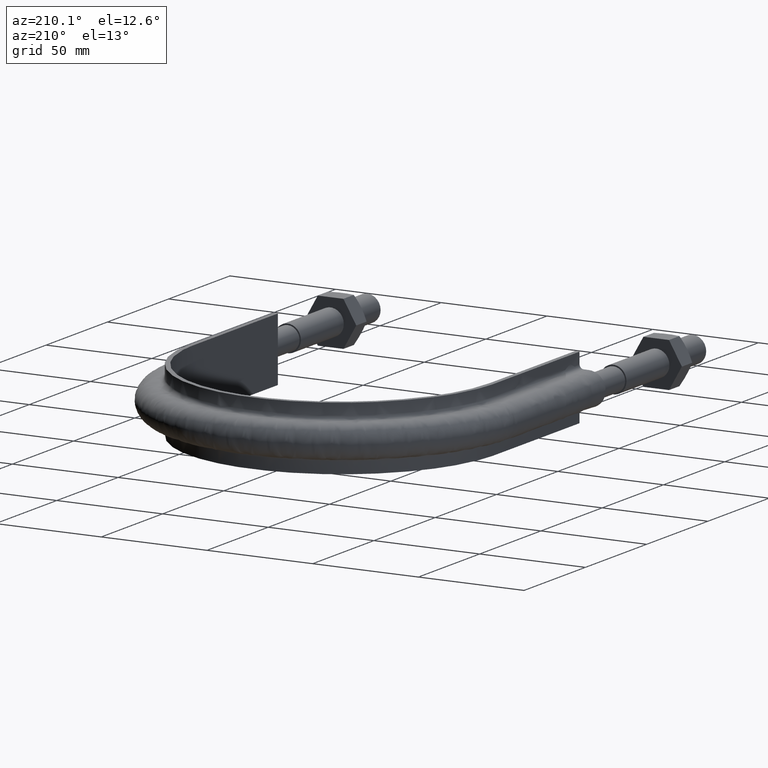
[diagram: clean part render]
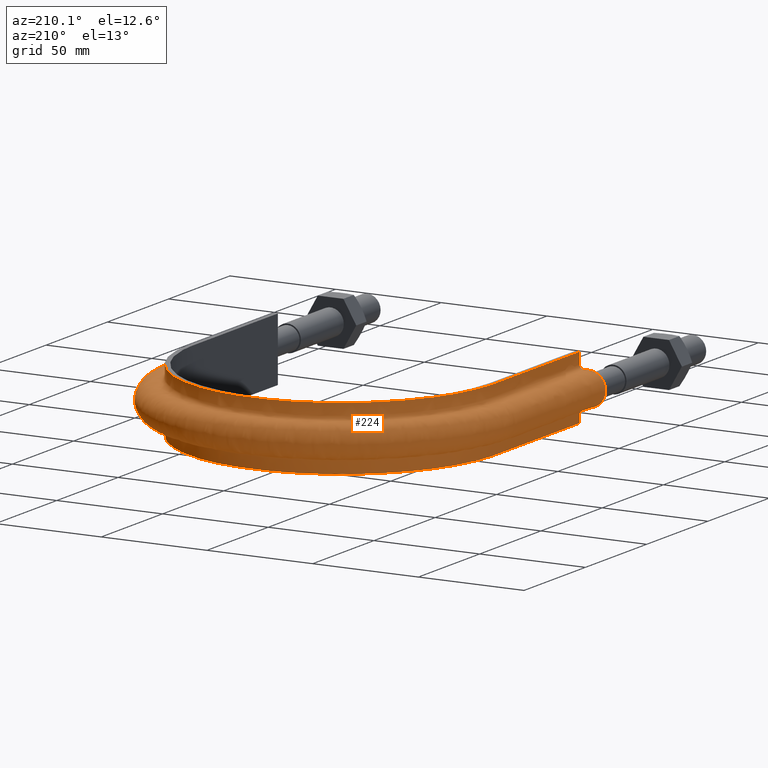
[diagram: same view with one face highlighted and labeled with its STEP entity id]
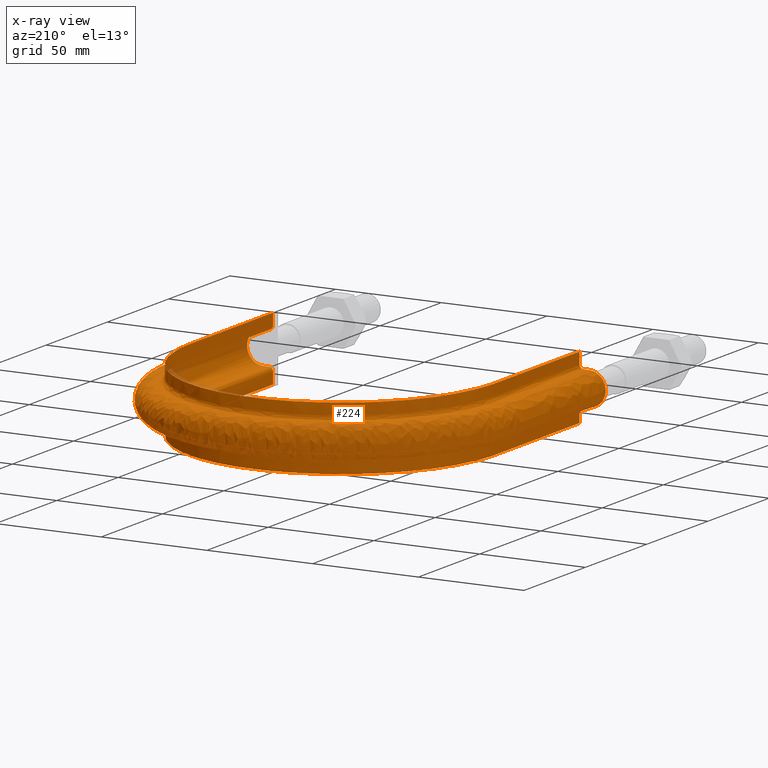
[diagram: x-ray of the same camera — body ghosted, the highlighted face saturated]
A machine part, auxiliary view. The second image highlights one B-rep face of the part: STEP entity #224.
The next image is the same camera in x-ray: the body ghosted, the highlighted face saturated — about 1% of this face is hidden behind the body in this view.
In plain terms, the highlighted face is a freeform B-spline surface patch.
Its self-contained STEP definition (entity closure, byte-faithful):
#224 = ADVANCED_FACE( '', ( #272 ), #273, .F. );
#272 = FACE_OUTER_BOUND( '', #375, .T. );
#273 = B_SPLINE_SURFACE_WITH_KNOTS( '', 3, 3, ( ( #376, #377, #378, #379, #380, #381, #382, #383, #384, #385, #386, #387, #388, #389, #390, #391 ), ( #392, #393, #394, #395, #396, #397, #398, #399, #400, #401, #402, #403, #404, #405, #406, #407 ), ( #408, #409, #410, #411, #412, #413, #414, #415, #416, #417, #418, #419, #420, #421, #422, #423 ), ( #424, #425, #426, #427, #428, #429, #430, #431, #432, #433, #434, #435, #436, #437, #438, #439 ), ( #440, #441, #442, #443, #444, #445, #446, #447, #448, #449, #450, #451, #452, #453, #454, #455 ), ( #456, #457, #458, #459, #460, #461, #462, #463, #464, #465, #466, #467, #468, #469, #470, #471 ), ( #472, #473, #474, #475, #476, #477, #478, #479, #480, #481, #482, #483, #484, #485, #486, #487 ), ( #488, #489, #490, #491, #492, #493, #494, #495, #496, #497, #498, #499, #500, #501, #502, #503 ), ( #504, #505, #506, #507, #508, #509, #510, #511, #512, #513, #514, #515, #516, #517, #518, #519 ), ( #520, #521, #522, #523, #524, #525, #526, #527, #528, #529, #530, #531, #532, #533, #534, #535 ), ( #536, #537, #538, #539, #540, #541, #542, #543, #544, #545, #546, #547, #548, #549, #550, #551 ), ( #552, #553, #554, #555, #556, #557, #558, #559, #560, #561, #562, #563, #564, #565, #566, #567 ), ( #568, #569, #570, #571, #572, #573, #574, #575, #576, #577, #578, #579, #580, #581, #582, #583 ), ( #584, #585, #586, #587, #588, #589, #590, #591, #592, #593, #594, #595, #596, #597, #598, #599 ), ( #600, #601, #602, #603, #604, #605, #606, #607, #608, #609, #610, #611, #612, #613, #614, #615 ), ( #616, #617, #618, #619, #620, #621, #622, #623, #624, #625, #626, #627, #628, #629, #630, #631 ), ( #632, #633, #634, #635, #636, #637, #638, #639, #640, #641, #642, #643, #644, #645, #646, #647 ), ( #648, #649, #650, #651, #652, #653, #654, #655, #656, #657, #658, #659, #660, #661, #662, #663 ), ( #664, #665, #666, #667, #668, #669, #670, #671, #672, #673, #674, #675, #676, #677, #678, #679 ), ( #680, #681, #682, #683, #684, #685, #686, #687, #688, #689, #690, #691, #692, #693, #694, #695 ), ( #696, #697, #698, #699, #700, #701, #702, #703, #704, #705, #706, #707, #708, #709, #710, #711 ), ( #712, #713, #714, #715, #716, #717, #718, #719, #720, #721, #722, #723, #724, #725, #726, #727 ), ( #728, #729, #730, #731, #732, #733, #734, #735, #736, #737, #738, #739, #740, #741, #742, #743 ), ( #744, #745, #746, #747, #748, #749, #750, #751, #752, #753, #754, #755, #756, #757, #758, #759 ), ( #760, #761, #762, #763, #764, #765, #766, #767, #768, #769, #770, #771, #772, #773, #774, #775 ), ( #776, #777, #778, #779, #780, #781, #782, #783, #784, #785, #786, #787, #788, #789, #790, #791 ), ( #792, #793, #794, #795, #796, #797, #798, #799, #800, #801, #802, #803, #804, #805, #806, #807 ), ( #808, #809, #810, #811, #812, #813, #814, #815, #816, #817, #818, #819, #820, #821, #822, #823 ), ( #824, #825, #826, #827, #828, #829, #830, #831, #832, #833, #834, #835, #836, #837, #838, #839 ), ( #840, #841, #842, #843, #844, #845, #846, #847, #848, #849, #850, #851, #852, #853, #854, #855 ), ( #856, #857, #858, #859, #860, #861, #862, #863, #864, #865, #866, #867, #868, #869, #870, #871 ) ), .UNSPECIFIED., .F., .F., .F., ( 4, 3, 1, 1, 1, 3, 3, 1, 1, 1, 3, 3, 1, 1, 1, 3, 4 ), ( 4, 3, 1, 1, 1, 1, 1, 1, 3, 4 ), ( 0.105263157894737, 0.157894736842105, 0.210526315789474, 0.263157894736842, 0.315789473684211, 0.368421052631579, 0.421052631578947, 0.473684210526316, 0.526315789473684, 0.578947368421053, 0.631578947368421, 0.684210526315789, 0.736842105263158, 0.789473684210526, 0.842105263157895, 0.894736842105263, 0.947368421052632 ), ( 0.000000000000000, 1.00000000000000, 2.00000000000000, 3.00000000000000, 4.00000000000000, 5.00000000000000, 6.00000000000000, 7.00000000000000, 8.00000000000000, 9.00000000000000 ), .UNSPECIFIED. );
#375 = EDGE_LOOP( '', ( #1361, #1362, #1363, #1364 ) );
#376 = CARTESIAN_POINT( '', ( 72.4500000000000, 84.7100000000000, -15.0000000000000 ) );
#377 = CARTESIAN_POINT( '', ( 72.4500000000000, 107.726666666667, -15.0000000000000 ) );
#378 = CARTESIAN_POINT( '', ( 72.4500000000000, 130.743333333333, -15.0000000000000 ) );
#379 = CARTESIAN_POINT( '', ( 72.4500000000000, 153.760000000000, -15.0000000000000 ) );
#380 = CARTESIAN_POINT( '', ( 72.4500000000000, 164.584175230504, -15.0000000000000 ) );
#381 = CARTESIAN_POINT( '', ( 67.5035108460798, 186.273453800089, -15.0000000000000 ) );
#382 = CARTESIAN_POINT( '', ( 46.7138789159023, 212.335910248336, -15.0000000000000 ) );
#383 = CARTESIAN_POINT( '', ( 16.6719903583027, 226.805050635421, -15.0000000000000 ) );
#384 = CARTESIAN_POINT( '', ( -16.6719903583025, 226.805050635421, -15.0000000000000 ) );
#385 = CARTESIAN_POINT( '', ( -46.7138789159022, 212.335910248336, -15.0000000000000 ) );
#386 = CARTESIAN_POINT( '', ( -67.5035108460798, 186.273453800089, -15.0000000000000 ) );
#387 = CARTESIAN_POINT( '', ( -72.4500000000000, 164.584175230504, -15.0000000000000 ) );
#388 = CARTESIAN_POINT( '', ( -72.4500000000000, 153.760000000000, -15.0000000000000 ) );
#389 = CARTESIAN_POINT( '', ( -72.4500000000000, 130.743333333333, -15.0000000000000 ) );
#390 = CARTESIAN_POINT( '', ( -72.4500000000000, 107.726666666667, -15.0000000000000 ) );
#391 = CARTESIAN_POINT( '', ( -72.4500000000000, 84.7100000000000, -15.0000000000000 ) );
#392 = CARTESIAN_POINT( '', ( 72.4500000000000, 84.7100000000000, -13.2666666666667 ) );
#393 = CARTESIAN_POINT( '', ( 72.4500000000000, 107.726666666667, -13.2666666666667 ) );
#394 = CARTESIAN_POINT( '', ( 72.4500000000000, 130.743333333333, -13.2666666666667 ) );
#395 = CARTESIAN_POINT( '', ( 72.4500000000000, 153.760000000000, -13.2666666666667 ) );
#396 = CARTESIAN_POINT( '', ( 72.4500000000000, 164.584175230504, -13.2666666666667 ) );
#397 = CARTESIAN_POINT( '', ( 67.5035108460798, 186.273453800089, -13.2666666666667 ) );
#398 = CARTESIAN_POINT( '', ( 46.7138789159023, 212.335910248336, -13.2666666666667 ) );
#399 = CARTESIAN_POINT( '', ( 16.6719903583027, 226.805050635421, -13.2666666666667 ) );
#400 = CARTESIAN_POINT( '', ( -16.6719903583025, 226.805050635421, -13.2666666666667 ) );
#401 = CARTESIAN_POINT( '', ( -46.7138789159022, 212.335910248336, -13.2666666666667 ) );
#402 = CARTESIAN_POINT( '', ( -67.5035108460798, 186.273453800089, -13.2666666666667 ) );
#403 = CARTESIAN_POINT( '', ( -72.4500000000000, 164.584175230504, -13.2666666666667 ) );
#404 = CARTESIAN_POINT( '', ( -72.4500000000000, 153.760000000000, -13.2666666666667 ) );
#405 = CARTESIAN_POINT( '', ( -72.4500000000000, 130.743333333333, -13.2666666666667 ) );
#406 = CARTESIAN_POINT( '', ( -72.4500000000000, 107.726666666667, -13.2666666666667 ) );
#407 = CARTESIAN_POINT( '', ( -72.4500000000000, 84.7100000000000, -13.2666666666667 ) );
#408 = CARTESIAN_POINT( '', ( 72.4500000000000, 84.7100000000000, -11.5333333333333 ) );
#409 = CARTESIAN_POINT( '', ( 72.4500000000000, 107.726666666667, -11.5333333333333 ) );
#410 = CARTESIAN_POINT( '', ( 72.4500000000000, 130.743333333333, -11.5333333333333 ) );
#411 = CARTESIAN_POINT( '', ( 72.4500000000000, 153.760000000000, -11.5333333333333 ) );
#412 = CARTESIAN_POINT( '', ( 72.4500000000000, 164.584175230504, -11.5333333333333 ) );
#413 = CARTESIAN_POINT( '', ( 67.5035108460798, 186.273453800089, -11.5333333333333 ) );
#414 = CARTESIAN_POINT( '', ( 46.7138789159023, 212.335910248336, -11.5333333333333 ) );
#415 = CARTESIAN_POINT( '', ( 16.6719903583027, 226.805050635421, -11.5333333333333 ) );
#416 = CARTESIAN_POINT( '', ( -16.6719903583025, 226.805050635421, -11.5333333333333 ) );
#417 = CARTESIAN_POINT( '', ( -46.7138789159022, 212.335910248336, -11.5333333333333 ) );
#418 = CARTESIAN_POINT( '', ( -67.5035108460798, 186.273453800089, -11.5333333333333 ) );
#419 = CARTESIAN_POINT( '', ( -72.4500000000000, 164.584175230504, -11.5333333333333 ) );
#420 = CARTESIAN_POINT( '', ( -72.4500000000000, 153.760000000000, -11.5333333333333 ) );
#421 = CARTESIAN_POINT( '', ( -72.4500000000000, 130.743333333333, -11.5333333333333 ) );
#422 = CARTESIAN_POINT( '', ( -72.4500000000000, 107.726666666667, -11.5333333333333 ) );
#423 = CARTESIAN_POINT( '', ( -72.4500000000000, 84.7100000000000, -11.5333333333333 ) );
#424 = CARTESIAN_POINT( '', ( 72.4500000000000, 84.7100000000000, -9.79999999999999 ) );
#425 = CARTESIAN_POINT( '', ( 72.4500000000000, 107.726666666667, -9.79999999999999 ) );
#426 = CARTESIAN_POINT( '', ( 72.4500000000000, 130.743333333333, -9.79999999999999 ) );
#427 = CARTESIAN_POINT( '', ( 72.4500000000000, 153.760000000000, -9.79999999999999 ) );
#428 = CARTESIAN_POINT( '', ( 72.4500000000000, 164.584175230504, -9.79999999999999 ) );
#429 = CARTESIAN_POINT( '', ( 67.5035108460798, 186.273453800089, -9.80000000000000 ) );
#430 = CARTESIAN_POINT( '', ( 46.7138789159023, 212.335910248336, -9.79999999999998 ) );
#431 = CARTESIAN_POINT( '', ( 16.6719903583027, 226.805050635421, -9.80000000000000 ) );
#432 = CARTESIAN_POINT( '', ( -16.6719903583025, 226.805050635421, -9.79999999999999 ) );
#433 = CARTESIAN_POINT( '', ( -46.7138789159022, 212.335910248336, -9.79999999999999 ) );
#434 = CARTESIAN_POINT( '', ( -67.5035108460798, 186.273453800089, -9.79999999999999 ) );
#435 = CARTESIAN_POINT( '', ( -72.4500000000000, 164.584175230504, -9.79999999999999 ) );
#436 = CARTESIAN_POINT( '', ( -72.4500000000000, 153.760000000000, -9.79999999999999 ) );
#437 = CARTESIAN_POINT( '', ( -72.4500000000000, 130.743333333333, -9.79999999999999 ) );
#438 = CARTESIAN_POINT( '', ( -72.4500000000000, 107.726666666667, -9.79999999999999 ) );
#439 = CARTESIAN_POINT( '', ( -72.4500000000000, 84.7100000000000, -9.79999999999999 ) );
#440 = CARTESIAN_POINT( '', ( 72.4500000000000, 84.7100000000000, -9.53823584172332 ) );
#441 = CARTESIAN_POINT( '', ( 72.4500000000000, 107.726666666667, -9.53823584172332 ) );
#442 = CARTESIAN_POINT( '', ( 72.4500000000000, 130.743333333333, -9.53823584172332 ) );
#443 = CARTESIAN_POINT( '', ( 72.4500000000000, 153.760000000000, -9.53823584172332 ) );
#444 = CARTESIAN_POINT( '', ( 72.4500000000000, 164.584175230504, -9.53823584172332 ) );
#445 = CARTESIAN_POINT( '', ( 67.5035108460798, 186.273453800089, -9.53823584172334 ) );
#446 = CARTESIAN_POINT( '', ( 46.7138789159023, 212.335910248336, -9.53823584172331 ) );
#447 = CARTESIAN_POINT( '', ( 16.6719903583027, 226.805050635421, -9.53823584172333 ) );
#448 = CARTESIAN_POINT( '', ( -16.6719903583025, 226.805050635421, -9.53823584172332 ) );
#449 = CARTESIAN_POINT( '', ( -46.7138789159022, 212.335910248336, -9.53823584172333 ) );
#450 = CARTESIAN_POINT( '', ( -67.5035108460798, 186.273453800089, -9.53823584172333 ) );
#451 = CARTESIAN_POINT( '', ( -72.4500000000000, 164.584175230504, -9.53823584172332 ) );
#452 = CARTESIAN_POINT( '', ( -72.4500000000000, 153.760000000000, -9.53823584172332 ) );
#453 = CARTESIAN_POINT( '', ( -72.4500000000000, 130.743333333333, -9.53823584172332 ) );
#454 = CARTESIAN_POINT( '', ( -72.4500000000000, 107.726666666667, -9.53823584172332 ) );
#455 = CARTESIAN_POINT( '', ( -72.4500000000000, 84.7100000000000, -9.53823584172332 ) );
#456 = CARTESIAN_POINT( '', ( 72.5541362568359, 84.7100000000000, -9.01470752517000 ) );
#457 = CARTESIAN_POINT( '', ( 72.5541362568359, 107.726666666667, -9.01470752517000 ) );
#458 = CARTESIAN_POINT( '', ( 72.5541362568359, 130.743333333333, -9.01470752517000 ) );
#459 = CARTESIAN_POINT( '', ( 72.5541362568359, 153.760000000000, -9.01470752517000 ) );
#460 = CARTESIAN_POINT( '', ( 72.5541362568359, 164.600020844551, -9.01470752517000 ) );
#461 = CARTESIAN_POINT( '', ( 67.6005372497071, 186.320053916949, -9.01470752517001 ) );
#462 = CARTESIAN_POINT( '', ( 46.7810232705274, 212.420139589218, -9.01470752516999 ) );
#463 = CARTESIAN_POINT( '', ( 16.6959539010206, 226.910035179395, -9.01470752517000 ) );
#464 = CARTESIAN_POINT( '', ( -16.6959539010205, 226.910035179395, -9.01470752517000 ) );
#465 = CARTESIAN_POINT( '', ( -46.7810232705273, 212.420139589218, -9.01470752517000 ) );
#466 = CARTESIAN_POINT( '', ( -67.6005372497070, 186.320053916949, -9.01470752517000 ) );
#467 = CARTESIAN_POINT( '', ( -72.5541362568359, 164.600020844551, -9.01470752517000 ) );
#468 = CARTESIAN_POINT( '', ( -72.5541362568359, 153.760000000000, -9.01470752517000 ) );
#469 = CARTESIAN_POINT( '', ( -72.5541362568359, 130.743333333333, -9.01470752517000 ) );
#470 = CARTESIAN_POINT( '', ( -72.5541362568359, 107.726666666667, -9.01470752517000 ) );
#471 = CARTESIAN_POINT( '', ( -72.5541362568359, 84.7100000000000, -9.01470752517000 ) );
#472 = CARTESIAN_POINT( '', ( 72.9989687109389, 84.7100000000000, -8.34896871093886 ) );
#473 = CARTESIAN_POINT( '', ( 72.9989687109389, 107.726666666667, -8.34896871093886 ) );
#474 = CARTESIAN_POINT( '', ( 72.9989687109389, 130.743333333333, -8.34896871093886 ) );
#475 = CARTESIAN_POINT( '', ( 72.9989687109389, 153.760000000000, -8.34896871093886 ) );
#476 = CARTESIAN_POINT( '', ( 72.9989687109389, 164.667707581115, -8.34896871093886 ) );
#477 = CARTESIAN_POINT( '', ( 68.0149989804211, 186.519112774777, -8.34896871093888 ) );
#478 = CARTESIAN_POINT( '', ( 47.0678396873504, 212.779936892776, -8.34896871093885 ) );
#479 = CARTESIAN_POINT( '', ( 16.7983174950284, 227.358491209583, -8.34896871093887 ) );
#480 = CARTESIAN_POINT( '', ( -16.7983174950283, 227.358491209583, -8.34896871093886 ) );
#481 = CARTESIAN_POINT( '', ( -47.0678396873504, 212.779936892776, -8.34896871093886 ) );
#482 = CARTESIAN_POINT( '', ( -68.0149989804210, 186.519112774777, -8.34896871093886 ) );
#483 = CARTESIAN_POINT( '', ( -72.9989687109389, 164.667707581115, -8.34896871093886 ) );
#484 = CARTESIAN_POINT( '', ( -72.9989687109388, 153.760000000000, -8.34896871093886 ) );
#485 = CARTESIAN_POINT( '', ( -72.9989687109388, 130.743333333333, -8.34896871093886 ) );
#486 = CARTESIAN_POINT( '', ( -72.9989687109388, 107.726666666667, -8.34896871093886 ) );
#487 = CARTESIAN_POINT( '', ( -72.9989687109389, 84.7100000000000, -8.34896871093886 ) );
#488 = CARTESIAN_POINT( '', ( 73.6647075251700, 84.7100000000000, -7.90413625683590 ) );
#489 = CARTESIAN_POINT( '', ( 73.6647075251700, 107.726666666667, -7.90413625683590 ) );
#490 = CARTESIAN_POINT( '', ( 73.6647075251700, 130.743333333333, -7.90413625683590 ) );
#491 = CARTESIAN_POINT( '', ( 73.6647075251700, 153.760000000000, -7.90413625683590 ) );
#492 = CARTESIAN_POINT( '', ( 73.6647075251700, 164.769007941112, -7.90413625683590 ) );
#493 = CARTESIAN_POINT( '', ( 68.6352847950119, 186.817025408512, -7.90413625683591 ) );
#494 = CARTESIAN_POINT( '', ( 47.4970907895949, 213.318411610672, -7.90413625683589 ) );
#495 = CARTESIAN_POINT( '', ( 16.9515154397077, 228.029653088664, -7.90413625683590 ) );
#496 = CARTESIAN_POINT( '', ( -16.9515154397075, 228.029653088664, -7.90413625683589 ) );
#497 = CARTESIAN_POINT( '', ( -47.4970907895948, 213.318411610672, -7.90413625683590 ) );
#498 = CARTESIAN_POINT( '', ( -68.6352847950119, 186.817025408512, -7.90413625683590 ) );
#499 = CARTESIAN_POINT( '', ( -73.6647075251700, 164.769007941112, -7.90413625683590 ) );
#500 = CARTESIAN_POINT( '', ( -73.6647075251700, 153.760000000000, -7.90413625683590 ) );
#501 = CARTESIAN_POINT( '', ( -73.6647075251700, 130.743333333333, -7.90413625683590 ) );
#502 = CARTESIAN_POINT( '', ( -73.6647075251700, 107.726666666667, -7.90413625683590 ) );
#503 = CARTESIAN_POINT( '', ( -73.6647075251700, 84.7100000000000, -7.90413625683590 ) );
#504 = CARTESIAN_POINT( '', ( 74.1882358417234, 84.7100000000000, -7.79999999999999 ) );
#505 = CARTESIAN_POINT( '', ( 74.1882358417233, 107.726666666667, -7.79999999999999 ) );
#506 = CARTESIAN_POINT( '', ( 74.1882358417233, 130.743333333333, -7.79999999999999 ) );
#507 = CARTESIAN_POINT( '', ( 74.1882358417234, 153.760000000000, -7.79999999999999 ) );
#508 = CARTESIAN_POINT( '', ( 74.1882358417234, 164.848669222387, -7.79999999999999 ) );
#509 = CARTESIAN_POINT( '', ( 69.1230694657461, 187.051300016339, -7.80000000000000 ) );
#510 = CARTESIAN_POINT( '', ( 47.8346482552749, 213.741861102486, -7.79999999999998 ) );
#511 = CARTESIAN_POINT( '', ( 17.0719883043850, 228.557446032652, -7.80000000000000 ) );
#512 = CARTESIAN_POINT( '', ( -17.0719883043849, 228.557446032652, -7.79999999999998 ) );
#513 = CARTESIAN_POINT( '', ( -47.8346482552749, 213.741861102486, -7.79999999999999 ) );
#514 = CARTESIAN_POINT( '', ( -69.1230694657460, 187.051300016339, -7.79999999999999 ) );
#515 = CARTESIAN_POINT( '', ( -74.1882358417233, 164.848669222387, -7.79999999999999 ) );
#516 = CARTESIAN_POINT( '', ( -74.1882358417233, 153.760000000000, -7.79999999999999 ) );
#517 = CARTESIAN_POINT( '', ( -74.1882358417233, 130.743333333333, -7.79999999999999 ) );
#518 = CARTESIAN_POINT( '', ( -74.1882358417233, 107.726666666667, -7.79999999999999 ) );
#519 = CARTESIAN_POINT( '', ( -74.1882358417233, 84.7100000000000, -7.79999999999999 ) );
#520 = CARTESIAN_POINT( '', ( 74.4500000000000, 84.7100000000000, -7.79999999999999 ) );
#521 = CARTESIAN_POINT( '', ( 74.4500000000000, 107.726666666667, -7.79999999999999 ) );
#522 = CARTESIAN_POINT( '', ( 74.4500000000000, 130.743333333333, -7.79999999999999 ) );
#523 = CARTESIAN_POINT( '', ( 74.4500000000000, 153.760000000000, -7.79999999999999 ) );
#524 = CARTESIAN_POINT( '', ( 74.4500000000000, 164.888499863024, -7.79999999999999 ) );
#525 = CARTESIAN_POINT( '', ( 69.3669618011131, 187.168437320253, -7.80000000000000 ) );
#526 = CARTESIAN_POINT( '', ( 48.0034269881149, 213.953585848393, -7.79999999999998 ) );
#527 = CARTESIAN_POINT( '', ( 17.1322247367237, 228.821342504646, -7.80000000000000 ) );
#528 = CARTESIAN_POINT( '', ( -17.1322247367236, 228.821342504646, -7.79999999999998 ) );
#529 = CARTESIAN_POINT( '', ( -48.0034269881148, 213.953585848393, -7.79999999999999 ) );
#530 = CARTESIAN_POINT( '', ( -69.3669618011131, 187.168437320253, -7.79999999999999 ) );
#531 = CARTESIAN_POINT( '', ( -74.4500000000000, 164.888499863024, -7.79999999999999 ) );
#532 = CARTESIAN_POINT( '', ( -74.4500000000000, 153.760000000000, -7.79999999999999 ) );
#533 = CARTESIAN_POINT( '', ( -74.4500000000000, 130.743333333333, -7.79999999999999 ) );
#534 = CARTESIAN_POINT( '', ( -74.4500000000000, 107.726666666667, -7.79999999999999 ) );
#535 = CARTESIAN_POINT( '', ( -74.4500000000000, 84.7100000000000, -7.79999999999999 ) );
#536 = CARTESIAN_POINT( '', ( 75.3000000000000, 84.7100000000000, -7.79999999999999 ) );
#537 = CARTESIAN_POINT( '', ( 75.3000000000000, 107.726666666667, -7.79999999999999 ) );
#538 = CARTESIAN_POINT( '', ( 75.3000000000000, 130.743333333333, -7.79999999999999 ) );
#539 = CARTESIAN_POINT( '', ( 75.3000000000000, 153.760000000000, -7.79999999999999 ) );
#540 = CARTESIAN_POINT( '', ( 75.3000000000000, 165.017837831845, -7.79999999999999 ) );
#541 = CARTESIAN_POINT( '', ( 70.1589284570022, 187.548805316322, -7.80000000000000 ) );
#542 = CARTESIAN_POINT( '', ( 48.5514849188053, 214.641097978417, -7.79999999999998 ) );
#543 = CARTESIAN_POINT( '', ( 17.3278243475527, 229.678266549066, -7.80000000000000 ) );
#544 = CARTESIAN_POINT( '', ( -17.3278243475525, 229.678266549066, -7.79999999999999 ) );
#545 = CARTESIAN_POINT( '', ( -48.5514849188052, 214.641097978417, -7.79999999999999 ) );
#546 = CARTESIAN_POINT( '', ( -70.1589284570022, 187.548805316322, -7.79999999999999 ) );
#547 = CARTESIAN_POINT( '', ( -75.3000000000000, 165.017837831845, -7.79999999999999 ) );
#548 = CARTESIAN_POINT( '', ( -75.3000000000000, 153.760000000000, -7.79999999999999 ) );
#549 = CARTESIAN_POINT( '', ( -75.3000000000000, 130.743333333333, -7.79999999999999 ) );
#550 = CARTESIAN_POINT( '', ( -75.3000000000000, 107.726666666667, -7.79999999999999 ) );
#551 = CARTESIAN_POINT( '', ( -75.3000000000000, 84.7100000000000, -7.79999999999999 ) );
#552 = CARTESIAN_POINT( '', ( 76.1500000000000, 84.7100000000000, -7.79999999999999 ) );
#553 = CARTESIAN_POINT( '', ( 76.1500000000000, 107.726666666667, -7.79999999999999 ) );
#554 = CARTESIAN_POINT( '', ( 76.1500000000000, 130.743333333333, -7.79999999999999 ) );
#555 = CARTESIAN_POINT( '', ( 76.1500000000000, 153.760000000000, -7.79999999999999 ) );
#556 = CARTESIAN_POINT( '', ( 76.1500000000000, 165.147175800666, -7.79999999999999 ) );
#557 = CARTESIAN_POINT( '', ( 70.9508951128914, 187.929173312392, -7.80000000000000 ) );
#558 = CARTESIAN_POINT( '', ( 49.0995428494957, 215.328610108441, -7.79999999999998 ) );
#559 = CARTESIAN_POINT( '', ( 17.5234239583816, 230.535190593487, -7.80000000000000 ) );
#560 = CARTESIAN_POINT( '', ( -17.5234239583815, 230.535190593487, -7.79999999999999 ) );
#561 = CARTESIAN_POINT( '', ( -49.0995428494956, 215.328610108441, -7.79999999999999 ) );
#562 = CARTESIAN_POINT( '', ( -70.9508951128913, 187.929173312392, -7.79999999999999 ) );
#563 = CARTESIAN_POINT( '', ( -76.1500000000000, 165.147175800666, -7.79999999999999 ) );
#564 = CARTESIAN_POINT( '', ( -76.1500000000000, 153.760000000000, -7.79999999999999 ) );
#565 = CARTESIAN_POINT( '', ( -76.1500000000000, 130.743333333333, -7.79999999999999 ) );
#566 = CARTESIAN_POINT( '', ( -76.1500000000000, 107.726666666667, -7.79999999999999 ) );
#567 = CARTESIAN_POINT( '', ( -76.1500000000000, 84.7100000000000, -7.79999999999999 ) );
#568 = CARTESIAN_POINT( '', ( 77.0000000000000, 84.7100000000000, -7.79999999999999 ) );
#569 = CARTESIAN_POINT( '', ( 77.0000000000000, 107.726666666667, -7.79999999999999 ) );
#570 = CARTESIAN_POINT( '', ( 77.0000000000000, 130.743333333333, -7.79999999999999 ) );
#571 = CARTESIAN_POINT( '', ( 77.0000000000000, 153.760000000000, -7.79999999999999 ) );
#572 = CARTESIAN_POINT( '', ( 77.0000000000001, 165.276513769487, -7.79999999999999 ) );
#573 = CARTESIAN_POINT( '', ( 71.7428617687805, 188.309541308462, -7.80000000000000 ) );
#574 = CARTESIAN_POINT( '', ( 49.6476007801860, 216.016122238465, -7.79999999999998 ) );
#575 = CARTESIAN_POINT( '', ( 17.7190235692106, 231.392114637907, -7.80000000000000 ) );
#576 = CARTESIAN_POINT( '', ( -17.7190235692104, 231.392114637907, -7.79999999999999 ) );
#577 = CARTESIAN_POINT( '', ( -49.6476007801860, 216.016122238465, -7.79999999999999 ) );
#578 = CARTESIAN_POINT( '', ( -71.7428617687805, 188.309541308462, -7.79999999999999 ) );
#579 = CARTESIAN_POINT( '', ( -77.0000000000000, 165.276513769487, -7.79999999999999 ) );
#580 = CARTESIAN_POINT( '', ( -77.0000000000000, 153.760000000000, -7.79999999999999 ) );
#581 = CARTESIAN_POINT( '', ( -77.0000000000000, 130.743333333333, -7.79999999999999 ) );
#582 = CARTESIAN_POINT( '', ( -77.0000000000000, 107.726666666667, -7.79999999999999 ) );
#583 = CARTESIAN_POINT( '', ( -77.0000000000000, 84.7100000000000, -7.79999999999999 ) );
#584 = CARTESIAN_POINT( '', ( 79.0373902247172, 84.7100000000000, -7.79999999999997 ) );
#585 = CARTESIAN_POINT( '', ( 79.0373902247172, 107.726666666667, -7.79999999999997 ) );
#586 = CARTESIAN_POINT( '', ( 79.0373902247172, 130.743333333333, -7.79999999999997 ) );
#587 = CARTESIAN_POINT( '', ( 79.0373902247172, 153.760000000000, -7.79999999999997 ) );
#588 = CARTESIAN_POINT( '', ( 79.0373902247172, 165.586527785206, -7.79999999999997 ) );
#589 = CARTESIAN_POINT( '', ( 73.6411501487929, 189.221256646094, -7.79999999999998 ) );
#590 = CARTESIAN_POINT( '', ( 50.9612570985005, 217.664040465625, -7.79999999999996 ) );
#591 = CARTESIAN_POINT( '', ( 18.1878620810475, 233.446101310175, -7.79999999999998 ) );
#592 = CARTESIAN_POINT( '', ( -18.1878620810474, 233.446101310175, -7.79999999999997 ) );
#593 = CARTESIAN_POINT( '', ( -50.9612570985004, 217.664040465625, -7.79999999999998 ) );
#594 = CARTESIAN_POINT( '', ( -73.6411501487928, 189.221256646094, -7.79999999999997 ) );
#595 = CARTESIAN_POINT( '', ( -79.0373902247172, 165.586527785206, -7.79999999999997 ) );
#596 = CARTESIAN_POINT( '', ( -79.0373902247172, 153.760000000000, -7.79999999999997 ) );
#597 = CARTESIAN_POINT( '', ( -79.0373902247172, 130.743333333333, -7.79999999999997 ) );
#598 = CARTESIAN_POINT( '', ( -79.0373902247172, 107.726666666667, -7.79999999999997 ) );
#599 = CARTESIAN_POINT( '', ( -79.0373902247172, 84.7100000000000, -7.79999999999997 ) );
#600 = CARTESIAN_POINT( '', ( 83.1121706741516, 84.7100000000000, -6.11217067415152 ) );
#601 = CARTESIAN_POINT( '', ( 83.1121706741516, 107.726666666667, -6.11217067415152 ) );
#602 = CARTESIAN_POINT( '', ( 83.1121706741516, 130.743333333333, -6.11217067415152 ) );
#603 = CARTESIAN_POINT( '', ( 83.1121706741516, 153.760000000000, -6.11217067415152 ) );
#604 = CARTESIAN_POINT( '', ( 83.1121706741516, 166.206555816643, -6.11217067415152 ) );
#605 = CARTESIAN_POINT( '', ( 77.4377269088175, 191.044687321359, -6.11217067415152 ) );
#606 = CARTESIAN_POINT( '', ( 53.5885697351293, 220.959876919944, -6.11217067415151 ) );
#607 = CARTESIAN_POINT( '', ( 19.1255391047213, 237.554074654711, -6.11217067415152 ) );
#608 = CARTESIAN_POINT( '', ( -19.1255391047212, 237.554074654711, -6.11217067415151 ) );
#609 = CARTESIAN_POINT( '', ( -53.5885697351293, 220.959876919944, -6.11217067415152 ) );
#610 = CARTESIAN_POINT( '', ( -77.4377269088175, 191.044687321359, -6.11217067415152 ) );
#611 = CARTESIAN_POINT( '', ( -83.1121706741515, 166.206555816643, -6.11217067415152 ) );
#612 = CARTESIAN_POINT( '', ( -83.1121706741515, 153.760000000000, -6.11217067415152 ) );
#613 = CARTESIAN_POINT( '', ( -83.1121706741515, 130.743333333333, -6.11217067415152 ) );
#614 = CARTESIAN_POINT( '', ( -83.1121706741515, 107.726666666667, -6.11217067415152 ) );
#615 = CARTESIAN_POINT( '', ( -83.1121706741515, 84.7100000000000, -6.11217067415152 ) );
#616 = CARTESIAN_POINT( '', ( 85.6439146629242, 84.7100000000000, -2.58929722408949E-015 ) );
#617 = CARTESIAN_POINT( '', ( 85.6439146629242, 107.726666666667, -2.58929722408949E-015 ) );
#618 = CARTESIAN_POINT( '', ( 85.6439146629242, 130.743333333333, -2.58929722408949E-015 ) );
#619 = CARTESIAN_POINT( '', ( 85.6439146629242, 153.760000000000, -2.58929722408949E-015 ) );
#620 = CARTESIAN_POINT( '', ( 85.6439146629242, 166.591791846152, -2.58929722408949E-015 ) );
#621 = CARTESIAN_POINT( '', ( 79.7966172857066, 192.177621894972, -2.58929722408950E-015 ) );
#622 = CARTESIAN_POINT( '', ( 55.2209725251582, 223.007647158058, -2.58929722408949E-015 ) );
#623 = CARTESIAN_POINT( '', ( 19.7081369152183, 240.106442064472, -2.58929722408950E-015 ) );
#624 = CARTESIAN_POINT( '', ( -19.7081369152182, 240.106442064472, -2.58929722408949E-015 ) );
#625 = CARTESIAN_POINT( '', ( -55.2209725251581, 223.007647158058, -2.58929722408949E-015 ) );
#626 = CARTESIAN_POINT( '', ( -79.7966172857065, 192.177621894972, -2.58929722408949E-015 ) );
#627 = CARTESIAN_POINT( '', ( -85.6439146629242, 166.591791846152, -2.58929722408949E-015 ) );
#628 = CARTESIAN_POINT( '', ( -85.6439146629242, 153.760000000000, -2.58929722408949E-015 ) );
#629 = CARTESIAN_POINT( '', ( -85.6439146629242, 130.743333333333, -2.58929722408949E-015 ) );
#630 = CARTESIAN_POINT( '', ( -85.6439146629242, 107.726666666667, -2.58929722408949E-015 ) );
#631 = CARTESIAN_POINT( '', ( -85.6439146629242, 84.7100000000000, -2.58929722408949E-015 ) );
#632 = CARTESIAN_POINT( '', ( 83.1121706741516, 84.7100000000000, 6.11217067415151 ) );
#633 = CARTESIAN_POINT( '', ( 83.1121706741516, 107.726666666667, 6.11217067415151 ) );
#634 = CARTESIAN_POINT( '', ( 83.1121706741516, 130.743333333333, 6.11217067415151 ) );
#635 = CARTESIAN_POINT( '', ( 83.1121706741516, 153.760000000000, 6.11217067415151 ) );
#636 = CARTESIAN_POINT( '', ( 83.1121706741516, 166.206555816643, 6.11217067415151 ) );
#637 = CARTESIAN_POINT( '', ( 77.4377269088175, 191.044687321359, 6.11217067415152 ) );
#638 = CARTESIAN_POINT( '', ( 53.5885697351293, 220.959876919944, 6.11217067415150 ) );
#639 = CARTESIAN_POINT( '', ( 19.1255391047213, 237.554074654711, 6.11217067415152 ) );
#640 = CARTESIAN_POINT( '', ( -19.1255391047212, 237.554074654711, 6.11217067415151 ) );
#641 = CARTESIAN_POINT( '', ( -53.5885697351293, 220.959876919944, 6.11217067415151 ) );
#642 = CARTESIAN_POINT( '', ( -77.4377269088175, 191.044687321359, 6.11217067415151 ) );
#643 = CARTESIAN_POINT( '', ( -83.1121706741515, 166.206555816643, 6.11217067415151 ) );
#644 = CARTESIAN_POINT( '', ( -83.1121706741515, 153.760000000000, 6.11217067415151 ) );
#645 = CARTESIAN_POINT( '', ( -83.1121706741515, 130.743333333333, 6.11217067415151 ) );
#646 = CARTESIAN_POINT( '', ( -83.1121706741515, 107.726666666667, 6.11217067415151 ) );
#647 = CARTESIAN_POINT( '', ( -83.1121706741515, 84.7100000000000, 6.11217067415151 ) );
#648 = CARTESIAN_POINT( '', ( 79.0373902247172, 84.7100000000000, 7.79999999999997 ) );
#649 = CARTESIAN_POINT( '', ( 79.0373902247172, 107.726666666667, 7.79999999999997 ) );
#650 = CARTESIAN_POINT( '', ( 79.0373902247172, 130.743333333333, 7.79999999999997 ) );
#651 = CARTESIAN_POINT( '', ( 79.0373902247172, 153.760000000000, 7.79999999999997 ) );
#652 = CARTESIAN_POINT( '', ( 79.0373902247172, 165.586527785206, 7.79999999999997 ) );
#653 = CARTESIAN_POINT( '', ( 73.6411501487929, 189.221256646094, 7.79999999999998 ) );
#654 = CARTESIAN_POINT( '', ( 50.9612570985005, 217.664040465625, 7.79999999999996 ) );
#655 = CARTESIAN_POINT( '', ( 18.1878620810475, 233.446101310175, 7.79999999999998 ) );
#656 = CARTESIAN_POINT( '', ( -18.1878620810474, 233.446101310175, 7.79999999999997 ) );
#657 = CARTESIAN_POINT( '', ( -50.9612570985004, 217.664040465625, 7.79999999999997 ) );
#658 = CARTESIAN_POINT( '', ( -73.6411501487928, 189.221256646094, 7.79999999999997 ) );
#659 = CARTESIAN_POINT( '', ( -79.0373902247172, 165.586527785206, 7.79999999999997 ) );
#660 = CARTESIAN_POINT( '', ( -79.0373902247172, 153.760000000000, 7.79999999999997 ) );
#661 = CARTESIAN_POINT( '', ( -79.0373902247172, 130.743333333333, 7.79999999999997 ) );
#662 = CARTESIAN_POINT( '', ( -79.0373902247172, 107.726666666667, 7.79999999999997 ) );
#663 = CARTESIAN_POINT( '', ( -79.0373902247172, 84.7100000000000, 7.79999999999997 ) );
#664 = CARTESIAN_POINT( '', ( 77.0000000000001, 84.7100000000000, 7.79999999999998 ) );
#665 = CARTESIAN_POINT( '', ( 77.0000000000000, 107.726666666667, 7.79999999999998 ) );
#666 = CARTESIAN_POINT( '', ( 77.0000000000000, 130.743333333333, 7.79999999999998 ) );
#667 = CARTESIAN_POINT( '', ( 77.0000000000001, 153.760000000000, 7.79999999999998 ) );
#668 = CARTESIAN_POINT( '', ( 77.0000000000001, 165.276513769487, 7.79999999999998 ) );
#669 = CARTESIAN_POINT( '', ( 71.7428617687805, 188.309541308462, 7.79999999999999 ) );
#670 = CARTESIAN_POINT( '', ( 49.6476007801860, 216.016122238465, 7.79999999999997 ) );
#671 = CARTESIAN_POINT( '', ( 17.7190235692106, 231.392114637908, 7.79999999999999 ) );
#672 = CARTESIAN_POINT( '', ( -17.7190235692104, 231.392114637908, 7.79999999999998 ) );
#673 = CARTESIAN_POINT( '', ( -49.6476007801860, 216.016122238465, 7.79999999999998 ) );
#674 = CARTESIAN_POINT( '', ( -71.7428617687805, 188.309541308462, 7.79999999999998 ) );
#675 = CARTESIAN_POINT( '', ( -77.0000000000000, 165.276513769487, 7.79999999999998 ) );
#676 = CARTESIAN_POINT( '', ( -77.0000000000000, 153.760000000000, 7.79999999999998 ) );
#677 = CARTESIAN_POINT( '', ( -77.0000000000000, 130.743333333333, 7.79999999999998 ) );
#678 = CARTESIAN_POINT( '', ( -77.0000000000000, 107.726666666667, 7.79999999999998 ) );
#679 = CARTESIAN_POINT( '', ( -77.0000000000000, 84.7100000000000, 7.79999999999998 ) );
#680 = CARTESIAN_POINT( '', ( 76.1500000000000, 84.7100000000000, 7.79999999999999 ) );
#681 = CARTESIAN_POINT( '', ( 76.1500000000000, 107.726666666667, 7.79999999999999 ) );
#682 = CARTESIAN_POINT( '', ( 76.1500000000000, 130.743333333333, 7.79999999999999 ) );
#683 = CARTESIAN_POINT( '', ( 76.1500000000000, 153.760000000000, 7.79999999999999 ) );
#684 = CARTESIAN_POINT( '', ( 76.1500000000000, 165.147175800666, 7.79999999999999 ) );
#685 = CARTESIAN_POINT( '', ( 70.9508951128914, 187.929173312392, 7.80000000000000 ) );
#686 = CARTESIAN_POINT( '', ( 49.0995428494956, 215.328610108441, 7.79999999999998 ) );
#687 = CARTESIAN_POINT( '', ( 17.5234239583816, 230.535190593487, 7.80000000000000 ) );
#688 = CARTESIAN_POINT( '', ( -17.5234239583815, 230.535190593487, 7.79999999999999 ) );
#689 = CARTESIAN_POINT( '', ( -49.0995428494956, 215.328610108441, 7.79999999999999 ) );
#690 = CARTESIAN_POINT( '', ( -70.9508951128913, 187.929173312392, 7.79999999999999 ) );
#691 = CARTESIAN_POINT( '', ( -76.1500000000000, 165.147175800666, 7.79999999999999 ) );
#692 = CARTESIAN_POINT( '', ( -76.1500000000000, 153.760000000000, 7.79999999999999 ) );
#693 = CARTESIAN_POINT( '', ( -76.1500000000000, 130.743333333333, 7.79999999999999 ) );
#694 = CARTESIAN_POINT( '', ( -76.1500000000000, 107.726666666667, 7.79999999999999 ) );
#695 = CARTESIAN_POINT( '', ( -76.1500000000000, 84.7100000000000, 7.79999999999999 ) );
#696 = CARTESIAN_POINT( '', ( 75.3000000000000, 84.7100000000000, 7.79999999999999 ) );
#697 = CARTESIAN_POINT( '', ( 75.3000000000000, 107.726666666667, 7.79999999999999 ) );
#698 = CARTESIAN_POINT( '', ( 75.3000000000000, 130.743333333333, 7.79999999999999 ) );
#699 = CARTESIAN_POINT( '', ( 75.3000000000000, 153.760000000000, 7.79999999999999 ) );
#700 = CARTESIAN_POINT( '', ( 75.3000000000000, 165.017837831845, 7.79999999999999 ) );
#701 = CARTESIAN_POINT( '', ( 70.1589284570022, 187.548805316322, 7.80000000000000 ) );
#702 = CARTESIAN_POINT( '', ( 48.5514849188053, 214.641097978417, 7.79999999999998 ) );
#703 = CARTESIAN_POINT( '', ( 17.3278243475527, 229.678266549066, 7.80000000000000 ) );
#704 = CARTESIAN_POINT( '', ( -17.3278243475525, 229.678266549066, 7.79999999999999 ) );
#705 = CARTESIAN_POINT( '', ( -48.5514849188052, 214.641097978417, 7.79999999999999 ) );
#706 = CARTESIAN_POINT( '', ( -70.1589284570022, 187.548805316322, 7.79999999999999 ) );
#707 = CARTESIAN_POINT( '', ( -75.3000000000000, 165.017837831845, 7.79999999999999 ) );
#708 = CARTESIAN_POINT( '', ( -75.3000000000000, 153.760000000000, 7.79999999999999 ) );
#709 = CARTESIAN_POINT( '', ( -75.3000000000000, 130.743333333333, 7.79999999999999 ) );
#710 = CARTESIAN_POINT( '', ( -75.3000000000000, 107.726666666667, 7.79999999999999 ) );
#711 = CARTESIAN_POINT( '', ( -75.3000000000000, 84.7100000000000, 7.79999999999999 ) );
#712 = CARTESIAN_POINT( '', ( 74.4500000000000, 84.7100000000000, 7.79999999999999 ) );
#713 = CARTESIAN_POINT( '', ( 74.4500000000000, 107.726666666667, 7.79999999999999 ) );
#714 = CARTESIAN_POINT( '', ( 74.4500000000000, 130.743333333333, 7.79999999999999 ) );
#715 = CARTESIAN_POINT( '', ( 74.4500000000000, 153.760000000000, 7.79999999999999 ) );
#716 = CARTESIAN_POINT( '', ( 74.4500000000000, 164.888499863024, 7.79999999999999 ) );
#717 = CARTESIAN_POINT( '', ( 69.3669618011131, 187.168437320253, 7.80000000000000 ) );
#718 = CARTESIAN_POINT( '', ( 48.0034269881149, 213.953585848393, 7.79999999999998 ) );
#719 = CARTESIAN_POINT( '', ( 17.1322247367237, 228.821342504646, 7.80000000000000 ) );
#720 = CARTESIAN_POINT( '', ( -17.1322247367236, 228.821342504646, 7.79999999999999 ) );
#721 = CARTESIAN_POINT( '', ( -48.0034269881148, 213.953585848393, 7.79999999999999 ) );
#722 = CARTESIAN_POINT( '', ( -69.3669618011130, 187.168437320253, 7.79999999999999 ) );
#723 = CARTESIAN_POINT( '', ( -74.4500000000000, 164.888499863024, 7.79999999999999 ) );
#724 = CARTESIAN_POINT( '', ( -74.4499999999999, 153.760000000000, 7.79999999999999 ) );
#725 = CARTESIAN_POINT( '', ( -74.4499999999999, 130.743333333333, 7.79999999999999 ) );
#726 = CARTESIAN_POINT( '', ( -74.4499999999999, 107.726666666667, 7.79999999999999 ) );
#727 = CARTESIAN_POINT( '', ( -74.4500000000000, 84.7100000000000, 7.79999999999999 ) );
#728 = CARTESIAN_POINT( '', ( 74.1882358417233, 84.7100000000000, 7.79999999999999 ) );
#729 = CARTESIAN_POINT( '', ( 74.1882358417233, 107.726666666667, 7.79999999999999 ) );
#730 = CARTESIAN_POINT( '', ( 74.1882358417233, 130.743333333333, 7.79999999999999 ) );
#731 = CARTESIAN_POINT( '', ( 74.1882358417233, 153.760000000000, 7.79999999999999 ) );
#732 = CARTESIAN_POINT( '', ( 74.1882358417234, 164.848669222387, 7.79999999999999 ) );
#733 = CARTESIAN_POINT( '', ( 69.1230694657460, 187.051300016339, 7.80000000000000 ) );
#734 = CARTESIAN_POINT( '', ( 47.8346482552749, 213.741861102486, 7.79999999999998 ) );
#735 = CARTESIAN_POINT( '', ( 17.0719883043850, 228.557446032652, 7.80000000000000 ) );
#736 = CARTESIAN_POINT( '', ( -17.0719883043849, 228.557446032652, 7.79999999999999 ) );
#737 = CARTESIAN_POINT( '', ( -47.8346482552748, 213.741861102486, 7.80000000000000 ) );
#738 = CARTESIAN_POINT( '', ( -69.1230694657460, 187.051300016339, 7.79999999999999 ) );
#739 = CARTESIAN_POINT( '', ( -74.1882358417233, 164.848669222387, 7.79999999999999 ) );
#740 = CARTESIAN_POINT( '', ( -74.1882358417233, 153.760000000000, 7.79999999999999 ) );
#741 = CARTESIAN_POINT( '', ( -74.1882358417233, 130.743333333333, 7.79999999999999 ) );
#742 = CARTESIAN_POINT( '', ( -74.1882358417233, 107.726666666667, 7.79999999999999 ) );
#743 = CARTESIAN_POINT( '', ( -74.1882358417233, 84.7100000000000, 7.79999999999999 ) );
#744 = CARTESIAN_POINT( '', ( 73.6647075251700, 84.7100000000000, 7.90413625683590 ) );
#745 = CARTESIAN_POINT( '', ( 73.6647075251700, 107.726666666667, 7.90413625683590 ) );
#746 = CARTESIAN_POINT( '', ( 73.6647075251700, 130.743333333333, 7.90413625683590 ) );
#747 = CARTESIAN_POINT( '', ( 73.6647075251700, 153.760000000000, 7.90413625683590 ) );
#748 = CARTESIAN_POINT( '', ( 73.6647075251700, 164.769007941112, 7.90413625683590 ) );
#749 = CARTESIAN_POINT( '', ( 68.6352847950119, 186.817025408512, 7.90413625683591 ) );
#750 = CARTESIAN_POINT( '', ( 47.4970907895949, 213.318411610672, 7.90413625683589 ) );
#751 = CARTESIAN_POINT( '', ( 16.9515154397076, 228.029653088664, 7.90413625683591 ) );
#752 = CARTESIAN_POINT( '', ( -16.9515154397075, 228.029653088664, 7.90413625683590 ) );
#753 = CARTESIAN_POINT( '', ( -47.4970907895948, 213.318411610672, 7.90413625683590 ) );
#754 = CARTESIAN_POINT( '', ( -68.6352847950119, 186.817025408512, 7.90413625683590 ) );
#755 = CARTESIAN_POINT( '', ( -73.6647075251700, 164.769007941112, 7.90413625683590 ) );
#756 = CARTESIAN_POINT( '', ( -73.6647075251700, 153.760000000000, 7.90413625683590 ) );
#757 = CARTESIAN_POINT( '', ( -73.6647075251700, 130.743333333333, 7.90413625683590 ) );
#758 = CARTESIAN_POINT( '', ( -73.6647075251700, 107.726666666667, 7.90413625683590 ) );
#759 = CARTESIAN_POINT( '', ( -73.6647075251700, 84.7100000000000, 7.90413625683590 ) );
#760 = CARTESIAN_POINT( '', ( 72.9989687109389, 84.7100000000000, 8.34896871093887 ) );
#761 = CARTESIAN_POINT( '', ( 72.9989687109389, 107.726666666667, 8.34896871093887 ) );
#762 = CARTESIAN_POINT( '', ( 72.9989687109389, 130.743333333333, 8.34896871093887 ) );
#763 = CARTESIAN_POINT( '', ( 72.9989687109389, 153.760000000000, 8.34896871093887 ) );
#764 = CARTESIAN_POINT( '', ( 72.9989687109389, 164.667707581115, 8.34896871093887 ) );
#765 = CARTESIAN_POINT( '', ( 68.0149989804211, 186.519112774777, 8.34896871093888 ) );
#766 = CARTESIAN_POINT( '', ( 47.0678396873504, 212.779936892776, 8.34896871093886 ) );
#767 = CARTESIAN_POINT( '', ( 16.7983174950284, 227.358491209583, 8.34896871093888 ) );
#768 = CARTESIAN_POINT( '', ( -16.7983174950283, 227.358491209583, 8.34896871093887 ) );
#769 = CARTESIAN_POINT( '', ( -47.0678396873503, 212.779936892776, 8.34896871093887 ) );
#770 = CARTESIAN_POINT( '', ( -68.0149989804210, 186.519112774777, 8.34896871093887 ) );
#771 = CARTESIAN_POINT( '', ( -72.9989687109388, 164.667707581115, 8.34896871093887 ) );
#772 = CARTESIAN_POINT( '', ( -72.9989687109388, 153.760000000000, 8.34896871093887 ) );
#773 = CARTESIAN_POINT( '', ( -72.9989687109388, 130.743333333333, 8.34896871093887 ) );
#774 = CARTESIAN_POINT( '', ( -72.9989687109388, 107.726666666667, 8.34896871093887 ) );
#775 = CARTESIAN_POINT( '', ( -72.9989687109388, 84.7100000000000, 8.34896871093887 ) );
#776 = CARTESIAN_POINT( '', ( 72.5541362568359, 84.7100000000000, 9.01470752517000 ) );
#777 = CARTESIAN_POINT( '', ( 72.5541362568359, 107.726666666667, 9.01470752517000 ) );
#778 = CARTESIAN_POINT( '', ( 72.5541362568359, 130.743333333333, 9.01470752517000 ) );
#779 = CARTESIAN_POINT( '', ( 72.5541362568359, 153.760000000000, 9.01470752517000 ) );
#780 = CARTESIAN_POINT( '', ( 72.5541362568359, 164.600020844551, 9.01470752517000 ) );
#781 = CARTESIAN_POINT( '', ( 67.6005372497070, 186.320053916949, 9.01470752517001 ) );
#782 = CARTESIAN_POINT( '', ( 46.7810232705274, 212.420139589218, 9.01470752516999 ) );
#783 = CARTESIAN_POINT( '', ( 16.6959539010206, 226.910035179395, 9.01470752517001 ) );
#784 = CARTESIAN_POINT( '', ( -16.6959539010205, 226.910035179395, 9.01470752517000 ) );
#785 = CARTESIAN_POINT( '', ( -46.7810232705273, 212.420139589218, 9.01470752517000 ) );
#786 = CARTESIAN_POINT( '', ( -67.6005372497070, 186.320053916949, 9.01470752517000 ) );
#787 = CARTESIAN_POINT( '', ( -72.5541362568359, 164.600020844551, 9.01470752517000 ) );
#788 = CARTESIAN_POINT( '', ( -72.5541362568359, 153.760000000000, 9.01470752517000 ) );
#789 = CARTESIAN_POINT( '', ( -72.5541362568359, 130.743333333333, 9.01470752517000 ) );
#790 = CARTESIAN_POINT( '', ( -72.5541362568359, 107.726666666667, 9.01470752517000 ) );
#791 = CARTESIAN_POINT( '', ( -72.5541362568359, 84.7100000000000, 9.01470752517000 ) );
#792 = CARTESIAN_POINT( '', ( 72.4500000000000, 84.7100000000000, 9.53823584172333 ) );
#793 = CARTESIAN_POINT( '', ( 72.4500000000000, 107.726666666667, 9.53823584172333 ) );
#794 = CARTESIAN_POINT( '', ( 72.4500000000000, 130.743333333333, 9.53823584172333 ) );
#795 = CARTESIAN_POINT( '', ( 72.4500000000000, 153.760000000000, 9.53823584172333 ) );
#796 = CARTESIAN_POINT( '', ( 72.4500000000000, 164.584175230504, 9.53823584172333 ) );
#797 = CARTESIAN_POINT( '', ( 67.5035108460798, 186.273453800089, 9.53823584172334 ) );
#798 = CARTESIAN_POINT( '', ( 46.7138789159023, 212.335910248336, 9.53823584172332 ) );
#799 = CARTESIAN_POINT( '', ( 16.6719903583027, 226.805050635421, 9.53823584172334 ) );
#800 = CARTESIAN_POINT( '', ( -16.6719903583025, 226.805050635421, 9.53823584172333 ) );
#801 = CARTESIAN_POINT( '', ( -46.7138789159022, 212.335910248336, 9.53823584172333 ) );
#802 = CARTESIAN_POINT( '', ( -67.5035108460798, 186.273453800089, 9.53823584172333 ) );
#803 = CARTESIAN_POINT( '', ( -72.4500000000000, 164.584175230504, 9.53823584172333 ) );
#804 = CARTESIAN_POINT( '', ( -72.4500000000000, 153.760000000000, 9.53823584172333 ) );
#805 = CARTESIAN_POINT( '', ( -72.4500000000000, 130.743333333333, 9.53823584172333 ) );
#806 = CARTESIAN_POINT( '', ( -72.4500000000000, 107.726666666667, 9.53823584172333 ) );
#807 = CARTESIAN_POINT( '', ( -72.4500000000000, 84.7100000000000, 9.53823584172333 ) );
#808 = CARTESIAN_POINT( '', ( 72.4500000000000, 84.7100000000000, 9.79999999999999 ) );
#809 = CARTESIAN_POINT( '', ( 72.4500000000000, 107.726666666667, 9.79999999999999 ) );
#810 = CARTESIAN_POINT( '', ( 72.4500000000000, 130.743333333333, 9.79999999999999 ) );
#811 = CARTESIAN_POINT( '', ( 72.4500000000000, 153.760000000000, 9.79999999999999 ) );
#812 = CARTESIAN_POINT( '', ( 72.4500000000000, 164.584175230504, 9.79999999999999 ) );
#813 = CARTESIAN_POINT( '', ( 67.5035108460798, 186.273453800089, 9.80000000000001 ) );
#814 = CARTESIAN_POINT( '', ( 46.7138789159023, 212.335910248336, 9.79999999999998 ) );
#815 = CARTESIAN_POINT( '', ( 16.6719903583027, 226.805050635421, 9.80000000000001 ) );
#816 = CARTESIAN_POINT( '', ( -16.6719903583025, 226.805050635421, 9.79999999999999 ) );
#817 = CARTESIAN_POINT( '', ( -46.7138789159022, 212.335910248336, 9.80000000000000 ) );
#818 = CARTESIAN_POINT( '', ( -67.5035108460798, 186.273453800089, 9.79999999999999 ) );
#819 = CARTESIAN_POINT( '', ( -72.4500000000000, 164.584175230504, 9.79999999999999 ) );
#820 = CARTESIAN_POINT( '', ( -72.4500000000000, 153.760000000000, 9.79999999999999 ) );
#821 = CARTESIAN_POINT( '', ( -72.4500000000000, 130.743333333333, 9.79999999999999 ) );
#822 = CARTESIAN_POINT( '', ( -72.4500000000000, 107.726666666667, 9.79999999999999 ) );
#823 = CARTESIAN_POINT( '', ( -72.4500000000000, 84.7100000000000, 9.79999999999999 ) );
#824 = CARTESIAN_POINT( '', ( 72.4500000000000, 84.7100000000000, 11.5333333333333 ) );
#825 = CARTESIAN_POINT( '', ( 72.4500000000000, 107.726666666667, 11.5333333333333 ) );
#826 = CARTESIAN_POINT( '', ( 72.4500000000000, 130.743333333333, 11.5333333333333 ) );
#827 = CARTESIAN_POINT( '', ( 72.4500000000000, 153.760000000000, 11.5333333333333 ) );
#828 = CARTESIAN_POINT( '', ( 72.4500000000000, 164.584175230504, 11.5333333333333 ) );
#829 = CARTESIAN_POINT( '', ( 67.5035108460798, 186.273453800089, 11.5333333333333 ) );
#830 = CARTESIAN_POINT( '', ( 46.7138789159023, 212.335910248336, 11.5333333333333 ) );
#831 = CARTESIAN_POINT( '', ( 16.6719903583027, 226.805050635421, 11.5333333333333 ) );
#832 = CARTESIAN_POINT( '', ( -16.6719903583026, 226.805050635421, 11.5333333333333 ) );
#833 = CARTESIAN_POINT( '', ( -46.7138789159022, 212.335910248336, 11.5333333333333 ) );
#834 = CARTESIAN_POINT( '', ( -67.5035108460798, 186.273453800089, 11.5333333333333 ) );
#835 = CARTESIAN_POINT( '', ( -72.4500000000000, 164.584175230504, 11.5333333333333 ) );
#836 = CARTESIAN_POINT( '', ( -72.4500000000000, 153.760000000000, 11.5333333333333 ) );
#837 = CARTESIAN_POINT( '', ( -72.4500000000000, 130.743333333333, 11.5333333333333 ) );
#838 = CARTESIAN_POINT( '', ( -72.4500000000000, 107.726666666667, 11.5333333333333 ) );
#839 = CARTESIAN_POINT( '', ( -72.4500000000000, 84.7100000000000, 11.5333333333333 ) );
#840 = CARTESIAN_POINT( '', ( 72.4500000000000, 84.7100000000000, 13.2666666666666 ) );
#841 = CARTESIAN_POINT( '', ( 72.4500000000000, 107.726666666667, 13.2666666666666 ) );
#842 = CARTESIAN_POINT( '', ( 72.4500000000000, 130.743333333333, 13.2666666666666 ) );
#843 = CARTESIAN_POINT( '', ( 72.4500000000000, 153.760000000000, 13.2666666666666 ) );
#844 = CARTESIAN_POINT( '', ( 72.4500000000000, 164.584175230504, 13.2666666666666 ) );
#845 = CARTESIAN_POINT( '', ( 67.5035108460798, 186.273453800089, 13.2666666666667 ) );
#846 = CARTESIAN_POINT( '', ( 46.7138789159023, 212.335910248336, 13.2666666666666 ) );
#847 = CARTESIAN_POINT( '', ( 16.6719903583027, 226.805050635421, 13.2666666666667 ) );
#848 = CARTESIAN_POINT( '', ( -16.6719903583026, 226.805050635421, 13.2666666666666 ) );
#849 = CARTESIAN_POINT( '', ( -46.7138789159022, 212.335910248336, 13.2666666666666 ) );
#850 = CARTESIAN_POINT( '', ( -67.5035108460798, 186.273453800089, 13.2666666666666 ) );
#851 = CARTESIAN_POINT( '', ( -72.4500000000000, 164.584175230504, 13.2666666666666 ) );
#852 = CARTESIAN_POINT( '', ( -72.4500000000000, 153.760000000000, 13.2666666666666 ) );
#853 = CARTESIAN_POINT( '', ( -72.4500000000000, 130.743333333333, 13.2666666666666 ) );
#854 = CARTESIAN_POINT( '', ( -72.4500000000000, 107.726666666667, 13.2666666666666 ) );
#855 = CARTESIAN_POINT( '', ( -72.4500000000000, 84.7100000000000, 13.2666666666666 ) );
#856 = CARTESIAN_POINT( '', ( 72.4500000000000, 84.7100000000000, 15.0000000000000 ) );
#857 = CARTESIAN_POINT( '', ( 72.4500000000000, 107.726666666667, 15.0000000000000 ) );
#858 = CARTESIAN_POINT( '', ( 72.4500000000000, 130.743333333333, 15.0000000000000 ) );
#859 = CARTESIAN_POINT( '', ( 72.4500000000000, 153.760000000000, 15.0000000000000 ) );
#860 = CARTESIAN_POINT( '', ( 72.4500000000000, 164.584175230504, 15.0000000000000 ) );
#861 = CARTESIAN_POINT( '', ( 67.5035108460798, 186.273453800089, 15.0000000000000 ) );
#862 = CARTESIAN_POINT( '', ( 46.7138789159023, 212.335910248336, 15.0000000000000 ) );
#863 = CARTESIAN_POINT( '', ( 16.6719903583027, 226.805050635421, 15.0000000000000 ) );
#864 = CARTESIAN_POINT( '', ( -16.6719903583026, 226.805050635421, 15.0000000000000 ) );
#865 = CARTESIAN_POINT( '', ( -46.7138789159022, 212.335910248336, 15.0000000000000 ) );
#866 = CARTESIAN_POINT( '', ( -67.5035108460798, 186.273453800089, 15.0000000000000 ) );
#867 = CARTESIAN_POINT( '', ( -72.4500000000000, 164.584175230504, 15.0000000000000 ) );
#868 = CARTESIAN_POINT( '', ( -72.4500000000000, 153.760000000000, 15.0000000000000 ) );
#869 = CARTESIAN_POINT( '', ( -72.4500000000000, 130.743333333333, 15.0000000000000 ) );
#870 = CARTESIAN_POINT( '', ( -72.4500000000000, 107.726666666667, 15.0000000000000 ) );
#871 = CARTESIAN_POINT( '', ( -72.4500000000000, 84.7100000000000, 15.0000000000000 ) );
#1361 = ORIENTED_EDGE( '', *, *, #1609, .F. );
#1362 = ORIENTED_EDGE( '', *, *, #1605, .T. );
#1363 = ORIENTED_EDGE( '', *, *, #1602, .F. );
#1364 = ORIENTED_EDGE( '', *, *, #1612, .T. );
#1602 = EDGE_CURVE( '', #1686, #1688, #1689, .F. );
#1605 = EDGE_CURVE( '', #1693, #1688, #1694, .T. );
#1609 = EDGE_CURVE( '', #1693, #1700, #1701, .T. );
#1612 = EDGE_CURVE( '', #1686, #1700, #1704, .F. );
#1686 = VERTEX_POINT( '', #1845 );
#1688 = VERTEX_POINT( '', #1848 );
#1689 = B_SPLINE_CURVE_WITH_KNOTS( '', 3, ( #1849, #1850, #1851, #1852, #1853, #1854, #1855, #1856, #1857, #1858, #1859, #1860, #1861, #1862, #1863, #1864, #1865, #1866, #1867, #1868, #1869, #1870, #1871, #1872, #1873, #1874, #1875, #1876, #1877, #1878, #1879 ), .UNSPECIFIED., .F., .F., ( 4, 3, 1, 1, 1, 3, 3, 1, 1, 1, 3, 3, 1, 1, 1, 3, 4 ), ( 0.105263157894737, 0.157894736842105, 0.210526315789474, 0.263157894736842, 0.315789473684211, 0.368421052631579, 0.421052631578947, 0.473684210526316, 0.526315789473684, 0.578947368421053, 0.631578947368421, 0.684210526315789, 0.736842105263158, 0.789473684210526, 0.842105263157895, 0.894736842105263, 0.947368421052632 ), .UNSPECIFIED. );
#1693 = VERTEX_POINT( '', #1899 );
#1694 = B_SPLINE_CURVE_WITH_KNOTS( '', 3, ( #1900, #1901, #1902, #1903, #1904, #1905, #1906, #1907, #1908, #1909, #1910, #1911, #1912, #1913, #1914, #1915 ), .UNSPECIFIED., .F., .F., ( 4, 3, 1, 1, 1, 1, 1, 1, 3, 4 ), ( 0.000000000000000, 1.00000000000000, 2.00000000000000, 3.00000000000000, 4.00000000000000, 5.00000000000000, 6.00000000000000, 7.00000000000000, 8.00000000000000, 9.00000000000000 ), .UNSPECIFIED. );
#1700 = VERTEX_POINT( '', #1933 );
#1701 = B_SPLINE_CURVE_WITH_KNOTS( '', 3, ( #1934, #1935, #1936, #1937, #1938, #1939, #1940, #1941, #1942, #1943, #1944, #1945, #1946, #1947, #1948, #1949, #1950, #1951, #1952, #1953, #1954, #1955, #1956, #1957, #1958, #1959, #1960, #1961, #1962, #1963, #1964 ), .UNSPECIFIED., .F., .F., ( 4, 3, 1, 1, 1, 3, 3, 1, 1, 1, 3, 3, 1, 1, 1, 3, 4 ), ( 0.105263157894737, 0.157894736842105, 0.210526315789474, 0.263157894736842, 0.315789473684211, 0.368421052631579, 0.421052631578947, 0.473684210526316, 0.526315789473684, 0.578947368421053, 0.631578947368421, 0.684210526315789, 0.736842105263158, 0.789473684210526, 0.842105263157895, 0.894736842105263, 0.947368421052632 ), .UNSPECIFIED. );
#1704 = B_SPLINE_CURVE_WITH_KNOTS( '', 3, ( #1983, #1984, #1985, #1986, #1987, #1988, #1989, #1990, #1991, #1992, #1993, #1994, #1995, #1996, #1997, #1998 ), .UNSPECIFIED., .F., .F., ( 4, 3, 1, 1, 1, 1, 1, 1, 3, 4 ), ( 0.000000000000000, 1.00000000000000, 2.00000000000000, 3.00000000000000, 4.00000000000000, 5.00000000000000, 6.00000000000000, 7.00000000000000, 8.00000000000000, 9.00000000000000 ), .UNSPECIFIED. );
#1845 = CARTESIAN_POINT( '', ( -72.4500000000000, 84.7100000000000, 15.0000000000000 ) );
#1848 = CARTESIAN_POINT( '', ( -72.4500000000000, 84.7100000000000, -15.0000000000000 ) );
#1849 = CARTESIAN_POINT( '', ( -72.4500000000000, 84.7100000000000, -15.0000000000000 ) );
#1850 = CARTESIAN_POINT( '', ( -72.4500000000000, 84.7100000000000, -13.2666666666667 ) );
#1851 = CARTESIAN_POINT( '', ( -72.4500000000000, 84.7100000000000, -11.5333333333333 ) );
#1852 = CARTESIAN_POINT( '', ( -72.4500000000000, 84.7100000000000, -9.79999999999999 ) );
#1853 = CARTESIAN_POINT( '', ( -72.4500000000000, 84.7100000000000, -9.53823584172332 ) );
#1854 = CARTESIAN_POINT( '', ( -72.5541362568359, 84.7100000000000, -9.01470752517000 ) );
#1855 = CARTESIAN_POINT( '', ( -72.9989687109389, 84.7100000000000, -8.34896871093886 ) );
#1856 = CARTESIAN_POINT( '', ( -73.6647075251700, 84.7100000000000, -7.90413625683590 ) );
#1857 = CARTESIAN_POINT( '', ( -74.1882358417233, 84.7100000000000, -7.79999999999999 ) );
#1858 = CARTESIAN_POINT( '', ( -74.4500000000000, 84.7100000000000, -7.79999999999999 ) );
#1859 = CARTESIAN_POINT( '', ( -75.3000000000000, 84.7100000000000, -7.79999999999999 ) );
#1860 = CARTESIAN_POINT( '', ( -76.1500000000000, 84.7100000000000, -7.79999999999999 ) );
#1861 = CARTESIAN_POINT( '', ( -77.0000000000000, 84.7100000000000, -7.79999999999999 ) );
#1862 = CARTESIAN_POINT( '', ( -79.0373902247172, 84.7100000000000, -7.79999999999997 ) );
#1863 = CARTESIAN_POINT( '', ( -83.1121706741515, 84.7100000000000, -6.11217067415152 ) );
#1864 = CARTESIAN_POINT( '', ( -85.6439146629242, 84.7100000000000, -2.58929722408949E-015 ) );
#1865 = CARTESIAN_POINT( '', ( -83.1121706741515, 84.7100000000000, 6.11217067415151 ) );
#1866 = CARTESIAN_POINT( '', ( -79.0373902247172, 84.7100000000000, 7.79999999999997 ) );
#1867 = CARTESIAN_POINT( '', ( -77.0000000000000, 84.7100000000000, 7.79999999999998 ) );
#1868 = CARTESIAN_POINT( '', ( -76.1500000000000, 84.7100000000000, 7.79999999999999 ) );
#1869 = CARTESIAN_POINT( '', ( -75.3000000000000, 84.7100000000000, 7.79999999999999 ) );
#1870 = CARTESIAN_POINT( '', ( -74.4500000000000, 84.7100000000000, 7.79999999999999 ) );
#1871 = CARTESIAN_POINT( '', ( -74.1882358417233, 84.7100000000000, 7.79999999999999 ) );
#1872 = CARTESIAN_POINT( '', ( -73.6647075251700, 84.7100000000000, 7.90413625683590 ) );
#1873 = CARTESIAN_POINT( '', ( -72.9989687109388, 84.7100000000000, 8.34896871093887 ) );
#1874 = CARTESIAN_POINT( '', ( -72.5541362568359, 84.7100000000000, 9.01470752517000 ) );
#1875 = CARTESIAN_POINT( '', ( -72.4500000000000, 84.7100000000000, 9.53823584172333 ) );
#1876 = CARTESIAN_POINT( '', ( -72.4500000000000, 84.7100000000000, 9.79999999999999 ) );
#1877 = CARTESIAN_POINT( '', ( -72.4500000000000, 84.7100000000000, 11.5333333333333 ) );
#1878 = CARTESIAN_POINT( '', ( -72.4500000000000, 84.7100000000000, 13.2666666666666 ) );
#1879 = CARTESIAN_POINT( '', ( -72.4500000000000, 84.7100000000000, 15.0000000000000 ) );
#1899 = CARTESIAN_POINT( '', ( 72.4500000000000, 84.7100000000000, -15.0000000000000 ) );
#1900 = CARTESIAN_POINT( '', ( 72.4500000000000, 84.7100000000000, -15.0000000000000 ) );
#1901 = CARTESIAN_POINT( '', ( 72.4500000000000, 107.726666666667, -15.0000000000000 ) );
#1902 = CARTESIAN_POINT( '', ( 72.4500000000000, 130.743333333333, -15.0000000000000 ) );
#1903 = CARTESIAN_POINT( '', ( 72.4500000000000, 153.760000000000, -15.0000000000000 ) );
#1904 = CARTESIAN_POINT( '', ( 72.4500000000000, 164.584175230504, -15.0000000000000 ) );
#1905 = CARTESIAN_POINT( '', ( 67.5035108460798, 186.273453800089, -15.0000000000000 ) );
#1906 = CARTESIAN_POINT( '', ( 46.7138789159023, 212.335910248336, -15.0000000000000 ) );
#1907 = CARTESIAN_POINT( '', ( 16.6719903583027, 226.805050635421, -15.0000000000000 ) );
#1908 = CARTESIAN_POINT( '', ( -16.6719903583025, 226.805050635421, -15.0000000000000 ) );
#1909 = CARTESIAN_POINT( '', ( -46.7138789159022, 212.335910248336, -15.0000000000000 ) );
#1910 = CARTESIAN_POINT( '', ( -67.5035108460798, 186.273453800089, -15.0000000000000 ) );
#1911 = CARTESIAN_POINT( '', ( -72.4500000000000, 164.584175230504, -15.0000000000000 ) );
#1912 = CARTESIAN_POINT( '', ( -72.4500000000000, 153.760000000000, -15.0000000000000 ) );
#1913 = CARTESIAN_POINT( '', ( -72.4500000000000, 130.743333333333, -15.0000000000000 ) );
#1914 = CARTESIAN_POINT( '', ( -72.4500000000000, 107.726666666667, -15.0000000000000 ) );
#1915 = CARTESIAN_POINT( '', ( -72.4500000000000, 84.7100000000000, -15.0000000000000 ) );
#1933 = CARTESIAN_POINT( '', ( 72.4500000000000, 84.7100000000000, 15.0000000000000 ) );
#1934 = CARTESIAN_POINT( '', ( 72.4500000000000, 84.7100000000000, -15.0000000000000 ) );
#1935 = CARTESIAN_POINT( '', ( 72.4500000000000, 84.7100000000000, -13.2666666666667 ) );
#1936 = CARTESIAN_POINT( '', ( 72.4500000000000, 84.7100000000000, -11.5333333333333 ) );
#1937 = CARTESIAN_POINT( '', ( 72.4500000000000, 84.7100000000000, -9.79999999999999 ) );
#1938 = CARTESIAN_POINT( '', ( 72.4500000000000, 84.7100000000000, -9.53823584172332 ) );
#1939 = CARTESIAN_POINT( '', ( 72.5541362568359, 84.7100000000000, -9.01470752517000 ) );
#1940 = CARTESIAN_POINT( '', ( 72.9989687109389, 84.7100000000000, -8.34896871093886 ) );
#1941 = CARTESIAN_POINT( '', ( 73.6647075251700, 84.7100000000000, -7.90413625683590 ) );
#1942 = CARTESIAN_POINT( '', ( 74.1882358417234, 84.7100000000000, -7.79999999999999 ) );
#1943 = CARTESIAN_POINT( '', ( 74.4500000000000, 84.7100000000000, -7.79999999999999 ) );
#1944 = CARTESIAN_POINT( '', ( 75.3000000000000, 84.7100000000000, -7.79999999999999 ) );
#1945 = CARTESIAN_POINT( '', ( 76.1500000000000, 84.7100000000000, -7.79999999999999 ) );
#1946 = CARTESIAN_POINT( '', ( 77.0000000000000, 84.7100000000000, -7.79999999999999 ) );
#1947 = CARTESIAN_POINT( '', ( 79.0373902247172, 84.7100000000000, -7.79999999999997 ) );
#1948 = CARTESIAN_POINT( '', ( 83.1121706741516, 84.7100000000000, -6.11217067415152 ) );
#1949 = CARTESIAN_POINT( '', ( 85.6439146629242, 84.7100000000000, -2.58929722408949E-015 ) );
#1950 = CARTESIAN_POINT( '', ( 83.1121706741516, 84.7100000000000, 6.11217067415151 ) );
#1951 = CARTESIAN_POINT( '', ( 79.0373902247172, 84.7100000000000, 7.79999999999997 ) );
#1952 = CARTESIAN_POINT( '', ( 77.0000000000001, 84.7100000000000, 7.79999999999998 ) );
#1953 = CARTESIAN_POINT( '', ( 76.1500000000000, 84.7100000000000, 7.79999999999999 ) );
#1954 = CARTESIAN_POINT( '', ( 75.3000000000000, 84.7100000000000, 7.79999999999999 ) );
#1955 = CARTESIAN_POINT( '', ( 74.4500000000000, 84.7100000000000, 7.79999999999999 ) );
#1956 = CARTESIAN_POINT( '', ( 74.1882358417233, 84.7100000000000, 7.79999999999999 ) );
#1957 = CARTESIAN_POINT( '', ( 73.6647075251700, 84.7100000000000, 7.90413625683590 ) );
#1958 = CARTESIAN_POINT( '', ( 72.9989687109389, 84.7100000000000, 8.34896871093887 ) );
#1959 = CARTESIAN_POINT( '', ( 72.5541362568359, 84.7100000000000, 9.01470752517000 ) );
#1960 = CARTESIAN_POINT( '', ( 72.4500000000000, 84.7100000000000, 9.53823584172333 ) );
#1961 = CARTESIAN_POINT( '', ( 72.4500000000000, 84.7100000000000, 9.79999999999999 ) );
#1962 = CARTESIAN_POINT( '', ( 72.4500000000000, 84.7100000000000, 11.5333333333333 ) );
#1963 = CARTESIAN_POINT( '', ( 72.4500000000000, 84.7100000000000, 13.2666666666666 ) );
#1964 = CARTESIAN_POINT( '', ( 72.4500000000000, 84.7100000000000, 15.0000000000000 ) );
#1983 = CARTESIAN_POINT( '', ( 72.4500000000000, 84.7100000000000, 15.0000000000000 ) );
#1984 = CARTESIAN_POINT( '', ( 72.4500000000000, 107.726666666667, 15.0000000000000 ) );
#1985 = CARTESIAN_POINT( '', ( 72.4500000000000, 130.743333333333, 15.0000000000000 ) );
#1986 = CARTESIAN_POINT( '', ( 72.4500000000000, 153.760000000000, 15.0000000000000 ) );
#1987 = CARTESIAN_POINT( '', ( 72.4500000000000, 164.584175230504, 15.0000000000000 ) );
#1988 = CARTESIAN_POINT( '', ( 67.5035108460798, 186.273453800089, 15.0000000000000 ) );
#1989 = CARTESIAN_POINT( '', ( 46.7138789159023, 212.335910248336, 15.0000000000000 ) );
#1990 = CARTESIAN_POINT( '', ( 16.6719903583027, 226.805050635421, 15.0000000000000 ) );
#1991 = CARTESIAN_POINT( '', ( -16.6719903583026, 226.805050635421, 15.0000000000000 ) );
#1992 = CARTESIAN_POINT( '', ( -46.7138789159022, 212.335910248336, 15.0000000000000 ) );
#1993 = CARTESIAN_POINT( '', ( -67.5035108460798, 186.273453800089, 15.0000000000000 ) );
#1994 = CARTESIAN_POINT( '', ( -72.4500000000000, 164.584175230504, 15.0000000000000 ) );
#1995 = CARTESIAN_POINT( '', ( -72.4500000000000, 153.760000000000, 15.0000000000000 ) );
#1996 = CARTESIAN_POINT( '', ( -72.4500000000000, 130.743333333333, 15.0000000000000 ) );
#1997 = CARTESIAN_POINT( '', ( -72.4500000000000, 107.726666666667, 15.0000000000000 ) );
#1998 = CARTESIAN_POINT( '', ( -72.4500000000000, 84.7100000000000, 15.0000000000000 ) );